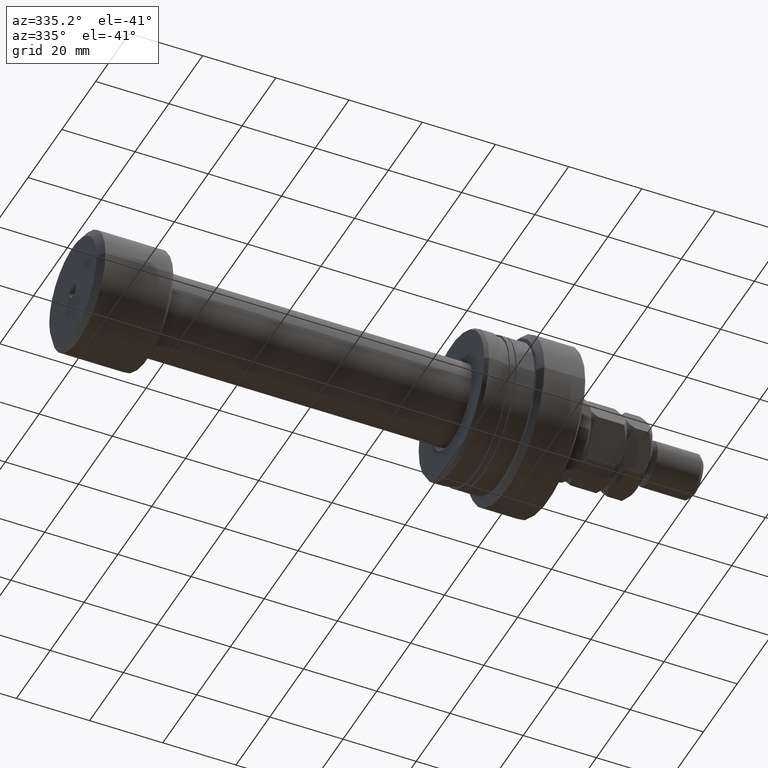
[diagram: clean part render]
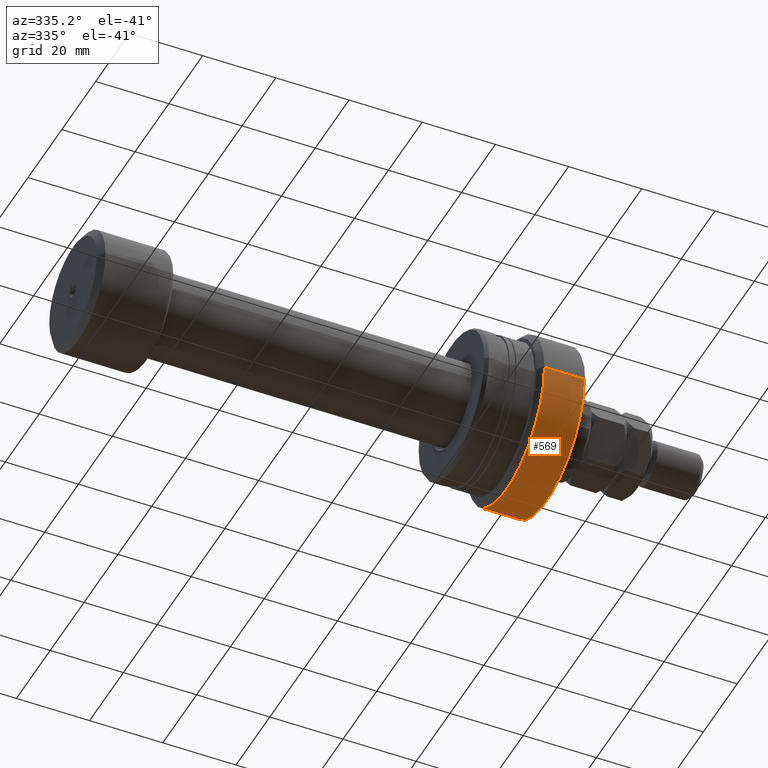
[diagram: same view with one face highlighted and labeled with its STEP entity id]
A machine part, auxiliary view. The second image highlights one B-rep face of the part: STEP entity #569.
In plain terms, the highlighted cylindrical surface (partial cylindrical patch) has radius 22.5 mm, axis along (-1, 0, 0).
Its self-contained STEP definition (entity closure, byte-faithful):
#93 = AXIS2_PLACEMENT_3D ( 'NONE', #745, #3561, #766 ) ;
#116 = CARTESIAN_POINT ( 'NONE',  ( -1.600000000000636913, 22.49999999999992184, 2.755455298081540439E-15 ) ) ;
#214 = ORIENTED_EDGE ( 'NONE', *, *, #1785, .T. ) ;
#252 = VERTEX_POINT ( 'NONE', #116 ) ;
#318 = VECTOR ( 'NONE', #803, 1000.000000000000000 ) ;
#569 = ADVANCED_FACE ( 'NONE', ( #3817 ), #2431, .T. ) ;
#575 = ORIENTED_EDGE ( 'NONE', *, *, #3588, .T. ) ;
#643 = DIRECTION ( 'NONE',  ( -1.310679959626922274E-15, -1.000000000000000000, 0.000000000000000000 ) ) ;
#729 = CARTESIAN_POINT ( 'NONE',  ( -30.28002276692729211, 22.49999999999996803, 2.755455298081540833E-15 ) ) ;
#745 = CARTESIAN_POINT ( 'NONE',  ( -1.600000000000666889, -3.825587927498604708E-14, 0.000000000000000000 ) ) ;
#766 = DIRECTION ( 'NONE',  ( -1.329954664915554407E-15, -1.000000000000000000, 0.000000000000000000 ) ) ;
#803 = DIRECTION ( 'NONE',  ( -1.000000000000000000, 1.333885945136072597E-15, -0.000000000000000000 ) ) ;
#884 = CARTESIAN_POINT ( 'NONE',  ( -30.28002276692732408, 0.000000000000000000, 0.000000000000000000 ) ) ;
#1029 = CARTESIAN_POINT ( 'NONE',  ( -1.600000000000696865, -22.50000000000000000, 0.000000000000000000 ) ) ;
#1104 = CARTESIAN_POINT ( 'NONE',  ( -30.28002276692735606, -22.49999999999996803, 0.000000000000000000 ) ) ;
#1785 = EDGE_CURVE ( 'NONE', #252, #3946, #3470, .T. ) ;
#1814 = DIRECTION ( 'NONE',  ( -1.000000000000000000, 1.333885945136072597E-15, -0.000000000000000000 ) ) ;
#1970 = DIRECTION ( 'NONE',  ( -1.000000000000000000, 1.333885945136072597E-15, -0.000000000000000000 ) ) ;
#2002 = CARTESIAN_POINT ( 'NONE',  ( -12.50000000000068212, -22.49999999999999645, 2.755455298081541622E-15 ) ) ;
#2014 = EDGE_CURVE ( 'NONE', #2543, #3547, #3608, .T. ) ;
#2135 = EDGE_CURVE ( 'NONE', #252, #2543, #3522, .T. ) ;
#2355 = LINE ( 'NONE', #1104, #318 ) ;
#2431 = CYLINDRICAL_SURFACE ( 'NONE', #3123, 22.49999999999996803 ) ;
#2543 = VERTEX_POINT ( 'NONE', #3198 ) ;
#2800 = DIRECTION ( 'NONE',  ( -1.000000000000000000, 1.333885945136072597E-15, -0.000000000000000000 ) ) ;
#2859 = EDGE_LOOP ( 'NONE', ( #2925, #214, #575, #3790 ) ) ;
#2925 = ORIENTED_EDGE ( 'NONE', *, *, #2135, .F. ) ;
#2957 = VECTOR ( 'NONE', #1970, 1000.000000000000000 ) ;
#3038 = DIRECTION ( 'NONE',  ( -1.387778780781447648E-15, -1.000000000000000000, 0.000000000000000000 ) ) ;
#3123 = AXIS2_PLACEMENT_3D ( 'NONE', #884, #1814, #3038 ) ;
#3136 = AXIS2_PLACEMENT_3D ( 'NONE', #3145, #2800, #643 ) ;
#3145 = CARTESIAN_POINT ( 'NONE',  ( -12.50000000000065370, -2.371652247300287340E-14, 0.000000000000000000 ) ) ;
#3198 = CARTESIAN_POINT ( 'NONE',  ( -12.50000000000062350, 22.49999999999995026, 0.000000000000000000 ) ) ;
#3470 = CIRCLE ( 'NONE', #93, 22.49999999999996092 ) ;
#3522 = LINE ( 'NONE', #729, #2957 ) ;
#3547 = VERTEX_POINT ( 'NONE', #2002 ) ;
#3561 = DIRECTION ( 'NONE',  ( -1.000000000000000000, 1.333885945136072597E-15, -0.000000000000000000 ) ) ;
#3588 = EDGE_CURVE ( 'NONE', #3946, #3547, #2355, .T. ) ;
#3608 = CIRCLE ( 'NONE', #3136, 22.49999999999997513 ) ;
#3790 = ORIENTED_EDGE ( 'NONE', *, *, #2014, .F. ) ;
#3817 = FACE_OUTER_BOUND ( 'NONE', #2859, .T. ) ;
#3946 = VERTEX_POINT ( 'NONE', #1029 ) ;